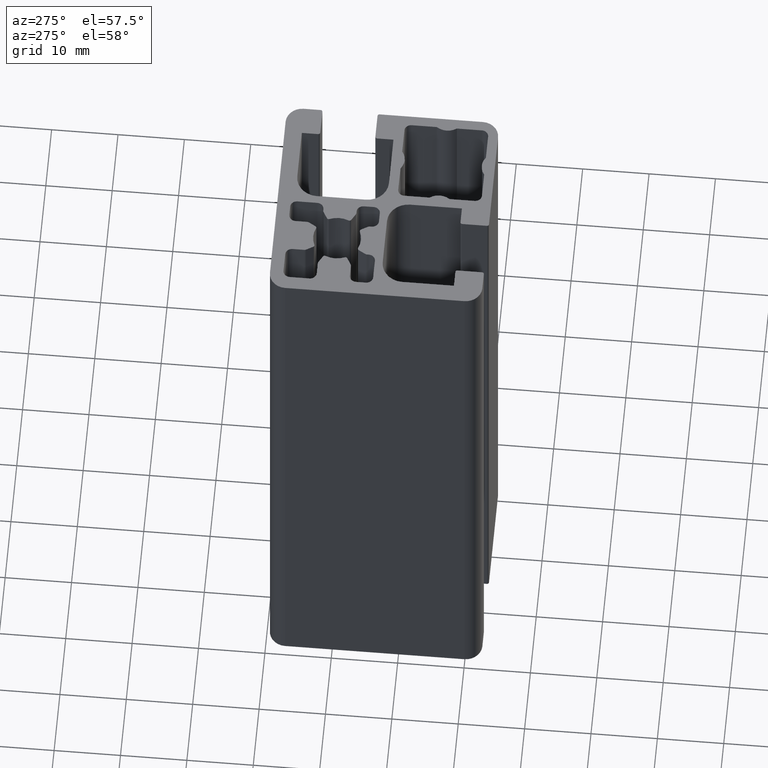
[diagram: clean part render]
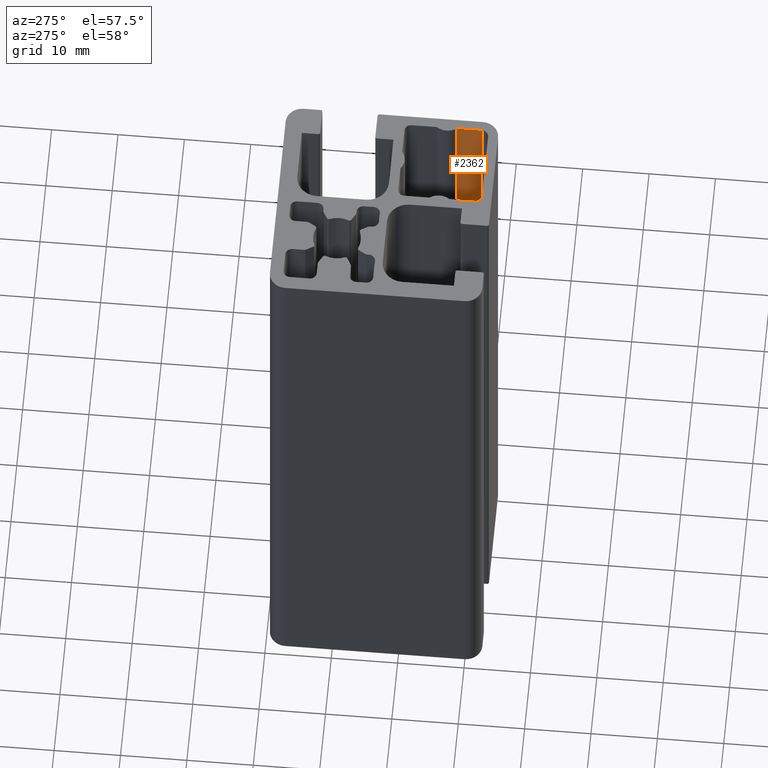
[diagram: same view with one face highlighted and labeled with its STEP entity id]
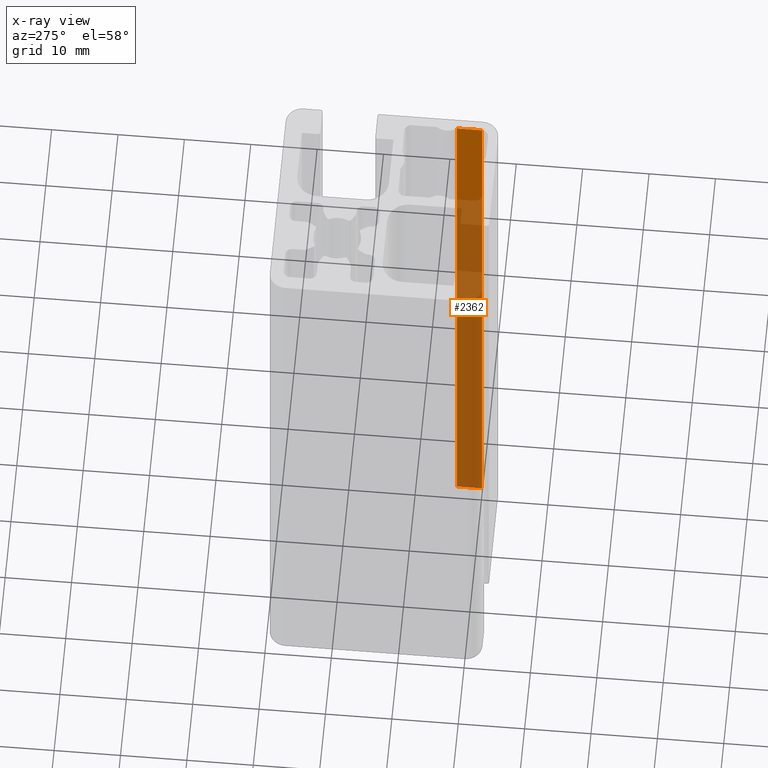
[diagram: x-ray of the same camera — body ghosted, the highlighted face saturated]
A machine part, auxiliary view. The second image highlights one B-rep face of the part: STEP entity #2362.
The next image is the same camera in x-ray: the body ghosted, the highlighted face saturated — about 80% of this face is hidden behind the body in this view.
In plain terms, the highlighted planar face has unit normal (1, 0, 0).
Its self-contained STEP definition (entity closure, byte-faithful):
#292=FACE_OUTER_BOUND('',#414,.T.);
#414=EDGE_LOOP('',(#1795,#1796,#1797,#1798));
#596=LINE('',#3833,#820);
#597=LINE('',#3837,#821);
#598=LINE('',#3839,#822);
#599=LINE('',#3840,#823);
#820=VECTOR('',#3102,100.);
#821=VECTOR('',#3107,3.76703467090212);
#822=VECTOR('',#3108,100.);
#823=VECTOR('',#3109,3.76703467090212);
#1057=VERTEX_POINT('',#3830);
#1058=VERTEX_POINT('',#3832);
#1059=VERTEX_POINT('',#3836);
#1060=VERTEX_POINT('',#3838);
#1365=EDGE_CURVE('',#1058,#1057,#596,.T.);
#1367=EDGE_CURVE('',#1059,#1057,#597,.T.);
#1368=EDGE_CURVE('',#1060,#1059,#598,.T.);
#1369=EDGE_CURVE('',#1058,#1060,#599,.T.);
#1795=ORIENTED_EDGE('',*,*,#1367,.F.);
#1796=ORIENTED_EDGE('',*,*,#1368,.F.);
#1797=ORIENTED_EDGE('',*,*,#1369,.F.);
#1798=ORIENTED_EDGE('',*,*,#1365,.T.);
#2267=PLANE('',#2568);
#2362=ADVANCED_FACE('',(#292),#2267,.F.);
#2568=AXIS2_PLACEMENT_3D('',#3835,#3105,#3106);
#3102=DIRECTION('',(0.,0.,1.));
#3105=DIRECTION('center_axis',(1.,0.,0.));
#3106=DIRECTION('ref_axis',(0.,1.,0.));
#3107=DIRECTION('',(0.,-1.,0.));
#3108=DIRECTION('',(0.,0.,1.));
#3109=DIRECTION('',(0.,1.,0.));
#3830=CARTESIAN_POINT('',(21.0000000165433,-20.,100.));
#3832=CARTESIAN_POINT('',(21.0000000165433,-20.,0.));
#3833=CARTESIAN_POINT('',(21.0000000165433,-20.,0.));
#3835=CARTESIAN_POINT('Origin',(21.0000000165433,-20.,0.));
#3836=CARTESIAN_POINT('',(21.0000000165433,-16.2329653290979,100.));
#3837=CARTESIAN_POINT('',(21.0000000165433,-13.25,100.));
#3838=CARTESIAN_POINT('',(21.0000000165433,-16.2329653290979,0.));
#3839=CARTESIAN_POINT('',(21.0000000165433,-16.2329653290979,0.));
#3840=CARTESIAN_POINT('',(21.0000000165433,-13.25,0.));